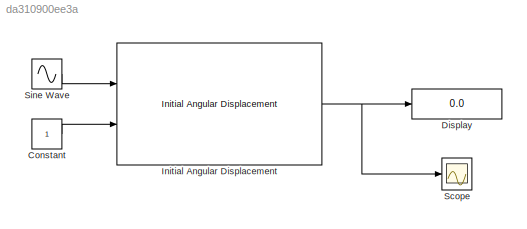
MODEL slx_da310900ee3a
KIND model
BLOCK [Constant] Constant
BLOCK [Display] Display
  Decimation = 1
  Ports = [1]
BLOCK [Reference] Initial Angular Displacement  REF=rocket_angular_flight_library/Initial Angular Displacement
  Ports = [2, 1]
  SourceBlock = rocket_angular_flight_library/Initial Angular Displacement
  SourceType = SubSystem
BLOCK [Scope] Scope
  DataFormat = StructureWithTime
  Floating = off
  NumInputPorts = 1
  Ports = [1]
  SampleTime = 0
  ShowLegends = off
BLOCK [Sin] Sine Wave
  Ports = [0, 1]
  SampleTime = 0
LINE Constant:1 -> Initial Angular Displacement:2
NET Initial Angular Displacement:1 -> Display:1, Scope:1
LINE Sine Wave:1 -> Initial Angular Displacement:1
note: NET lines group one-source signal fan-out (src -> all destinations, sorted); 1:1 wires keep LINE
